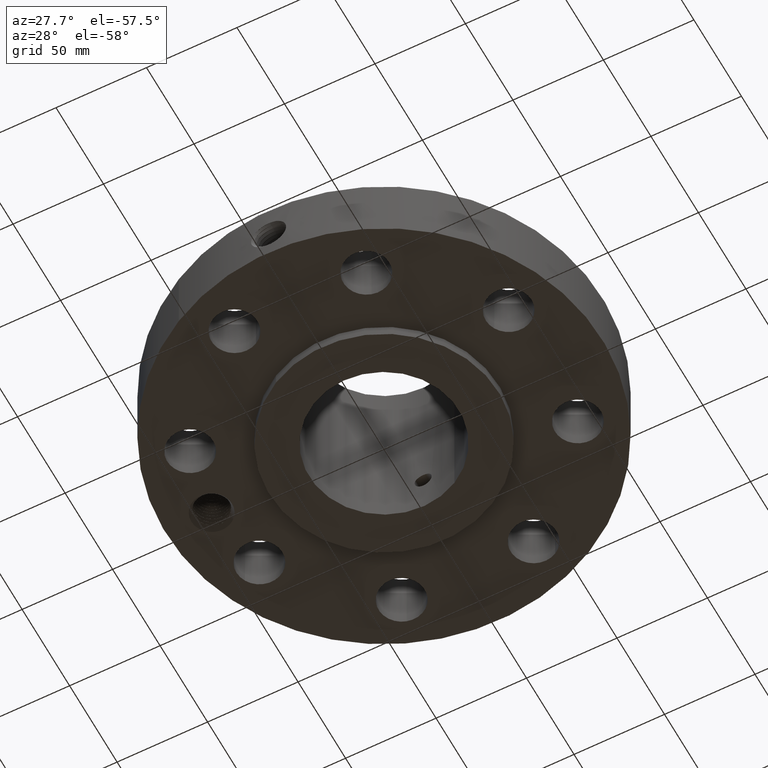
[diagram: clean part render]
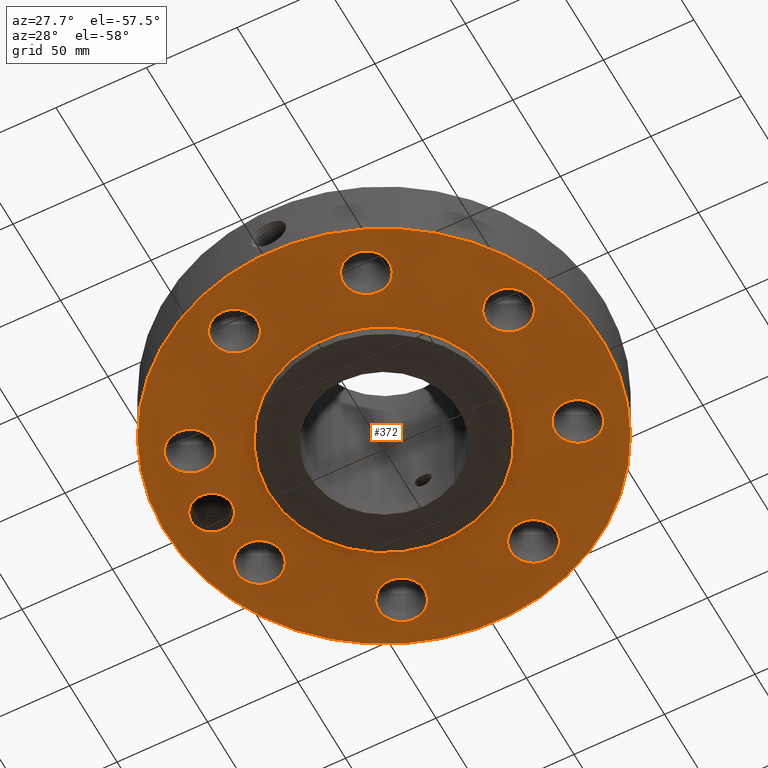
[diagram: same view with one face highlighted and labeled with its STEP entity id]
A machine part, auxiliary view. The second image highlights one B-rep face of the part: STEP entity #372.
In plain terms, the highlighted planar face has unit normal (0, 0, -1).
Its self-contained STEP definition (entity closure, byte-faithful):
#42=AXIS2_PLACEMENT_3D('Circle Axis2P3D',#40,#41,$) ;
#181=AXIS2_PLACEMENT_3D('Plane Axis2P3D',#178,#179,#180) ;
#185=AXIS2_PLACEMENT_3D('Circle Axis2P3D',#183,#184,$) ;
#194=AXIS2_PLACEMENT_3D('Circle Axis2P3D',#192,#193,$) ;
#203=AXIS2_PLACEMENT_3D('Circle Axis2P3D',#201,#202,$) ;
#212=AXIS2_PLACEMENT_3D('Circle Axis2P3D',#210,#211,$) ;
#221=AXIS2_PLACEMENT_3D('Circle Axis2P3D',#219,#220,$) ;
#230=AXIS2_PLACEMENT_3D('Circle Axis2P3D',#228,#229,$) ;
#239=AXIS2_PLACEMENT_3D('Circle Axis2P3D',#237,#238,$) ;
#248=AXIS2_PLACEMENT_3D('Circle Axis2P3D',#246,#247,$) ;
#257=AXIS2_PLACEMENT_3D('Circle Axis2P3D',#255,#256,$) ;
#266=AXIS2_PLACEMENT_3D('Circle Axis2P3D',#264,#265,$) ;
#275=AXIS2_PLACEMENT_3D('Circle Axis2P3D',#273,#274,$) ;
#284=AXIS2_PLACEMENT_3D('Circle Axis2P3D',#282,#283,$) ;
#293=AXIS2_PLACEMENT_3D('Circle Axis2P3D',#291,#292,$) ;
#302=AXIS2_PLACEMENT_3D('Circle Axis2P3D',#300,#301,$) ;
#311=AXIS2_PLACEMENT_3D('Circle Axis2P3D',#309,#310,$) ;
#320=AXIS2_PLACEMENT_3D('Circle Axis2P3D',#318,#319,$) ;
#329=AXIS2_PLACEMENT_3D('Circle Axis2P3D',#327,#328,$) ;
#338=AXIS2_PLACEMENT_3D('Circle Axis2P3D',#336,#337,$) ;
#347=AXIS2_PLACEMENT_3D('Circle Axis2P3D',#345,#346,$) ;
#356=AXIS2_PLACEMENT_3D('Circle Axis2P3D',#354,#355,$) ;
#365=AXIS2_PLACEMENT_3D('Circle Axis2P3D',#363,#364,$) ;
#40=CARTESIAN_POINT('Axis2P3D Location',(0.,0.,0.250000000001)) ;
#44=CARTESIAN_POINT('Vertex',(-2.27727130838,-4.168517169,0.250000000001)) ;
#46=CARTESIAN_POINT('Vertex',(2.27727130838,4.168517169,0.250000000001)) ;
#178=CARTESIAN_POINT('Axis2P3D Location',(0.,2.50000000001,0.250000000001)) ;
#183=CARTESIAN_POINT('Axis2P3D Location',(0.,0.,0.250000000001)) ;
#192=CARTESIAN_POINT('Axis2P3D Location',(-3.75000000001,8.39223703654E-016,0.250000000001)) ;
#196=CARTESIAN_POINT('Vertex',(-3.36140644161,-0.212289628495,0.250000000001)) ;
#198=CARTESIAN_POINT('Vertex',(-4.13859355842,0.212289628495,0.250000000001)) ;
#201=CARTESIAN_POINT('Axis2P3D Location',(-3.75000000001,8.39223703654E-016,0.250000000001)) ;
#210=CARTESIAN_POINT('Axis2P3D Location',(3.46454824693,-1.43506287137,0.250000000001)) ;
#214=CARTESIAN_POINT('Vertex',(3.90333952788,-1.67477564068,0.250000000001)) ;
#216=CARTESIAN_POINT('Vertex',(3.02575696598,-1.19535010207,0.250000000001)) ;
#219=CARTESIAN_POINT('Axis2P3D Location',(3.46454824693,-1.43506287137,0.250000000001)) ;
#228=CARTESIAN_POINT('Axis2P3D Location',(0.,0.,0.250000000001)) ;
#232=CARTESIAN_POINT('Vertex',(1.19856384652,2.19395640473,0.250000000001)) ;
#234=CARTESIAN_POINT('Vertex',(-1.19856384652,-2.19395640473,0.250000000001)) ;
#237=CARTESIAN_POINT('Axis2P3D Location',(0.,0.,0.250000000001)) ;
#246=CARTESIAN_POINT('Axis2P3D Location',(1.43506287137,-3.46454824693,0.250000000001)) ;
#250=CARTESIAN_POINT('Vertex',(1.2942931058,-2.98477343194,0.250000000001)) ;
#252=CARTESIAN_POINT('Vertex',(1.57583263695,-3.94432306193,0.250000000001)) ;
#255=CARTESIAN_POINT('Axis2P3D Location',(1.43506287137,-3.46454824693,0.250000000001)) ;
#264=CARTESIAN_POINT('Axis2P3D Location',(-1.43506287137,-3.46454824693,0.250000000001)) ;
#268=CARTESIAN_POINT('Vertex',(-1.19535010207,-3.02575696598,0.250000000001)) ;
#270=CARTESIAN_POINT('Vertex',(-1.67477564068,-3.90333952788,0.250000000001)) ;
#273=CARTESIAN_POINT('Axis2P3D Location',(-1.43506287137,-3.46454824693,0.250000000001)) ;
#282=CARTESIAN_POINT('Axis2P3D Location',(-3.46454824693,-1.43506287137,0.250000000001)) ;
#286=CARTESIAN_POINT('Vertex',(-2.98477343194,-1.2942931058,0.250000000001)) ;
#288=CARTESIAN_POINT('Vertex',(-3.94432306193,-1.57583263695,0.250000000001)) ;
#291=CARTESIAN_POINT('Axis2P3D Location',(-3.46454824693,-1.43506287137,0.250000000001)) ;
#300=CARTESIAN_POINT('Axis2P3D Location',(-3.46454824693,1.43506287137,0.250000000001)) ;
#304=CARTESIAN_POINT('Vertex',(-3.02575696598,1.19535010207,0.250000000001)) ;
#306=CARTESIAN_POINT('Vertex',(-3.90333952788,1.67477564068,0.250000000001)) ;
#309=CARTESIAN_POINT('Axis2P3D Location',(-3.46454824693,1.43506287137,0.250000000001)) ;
#318=CARTESIAN_POINT('Axis2P3D Location',(-1.43506287137,3.46454824693,0.250000000001)) ;
#322=CARTESIAN_POINT('Vertex',(-1.2942931058,2.98477343194,0.250000000001)) ;
#324=CARTESIAN_POINT('Vertex',(-1.57583263695,3.94432306193,0.250000000001)) ;
#327=CARTESIAN_POINT('Axis2P3D Location',(-1.43506287137,3.46454824693,0.250000000001)) ;
#336=CARTESIAN_POINT('Axis2P3D Location',(1.43506287137,3.46454824693,0.250000000001)) ;
#340=CARTESIAN_POINT('Vertex',(1.19535010207,3.02575696598,0.250000000001)) ;
#342=CARTESIAN_POINT('Vertex',(1.67477564068,3.90333952788,0.250000000001)) ;
#345=CARTESIAN_POINT('Axis2P3D Location',(1.43506287137,3.46454824693,0.250000000001)) ;
#354=CARTESIAN_POINT('Axis2P3D Location',(3.46454824693,1.43506287137,0.250000000001)) ;
#358=CARTESIAN_POINT('Vertex',(2.98477343194,1.2942931058,0.250000000001)) ;
#360=CARTESIAN_POINT('Vertex',(3.94432306193,1.57583263695,0.250000000001)) ;
#363=CARTESIAN_POINT('Axis2P3D Location',(3.46454824693,1.43506287137,0.250000000001)) ;
#41=DIRECTION('Axis2P3D Direction',(0.,0.,-0.0393700787402)) ;
#179=DIRECTION('Axis2P3D Direction',(0.,0.,-0.0393700787402)) ;
#180=DIRECTION('Axis2P3D XDirection',(0.0393700787402,0.,0.)) ;
#184=DIRECTION('Axis2P3D Direction',(0.,0.,-0.0393700787402)) ;
#193=DIRECTION('Axis2P3D Direction',(0.,0.,-0.0393700787402)) ;
#202=DIRECTION('Axis2P3D Direction',(0.,0.,-0.0393700787402)) ;
#211=DIRECTION('Axis2P3D Direction',(0.,0.,-0.0393700787402)) ;
#220=DIRECTION('Axis2P3D Direction',(0.,0.,-0.0393700787402)) ;
#229=DIRECTION('Axis2P3D Direction',(0.,0.,-0.0393700787402)) ;
#238=DIRECTION('Axis2P3D Direction',(0.,0.,-0.0393700787402)) ;
#247=DIRECTION('Axis2P3D Direction',(0.,0.,-0.0393700787402)) ;
#256=DIRECTION('Axis2P3D Direction',(0.,0.,-0.0393700787402)) ;
#265=DIRECTION('Axis2P3D Direction',(0.,0.,-0.0393700787402)) ;
#274=DIRECTION('Axis2P3D Direction',(0.,0.,-0.0393700787402)) ;
#283=DIRECTION('Axis2P3D Direction',(0.,0.,-0.0393700787402)) ;
#292=DIRECTION('Axis2P3D Direction',(0.,0.,-0.0393700787402)) ;
#301=DIRECTION('Axis2P3D Direction',(0.,0.,-0.0393700787402)) ;
#310=DIRECTION('Axis2P3D Direction',(0.,0.,-0.0393700787402)) ;
#319=DIRECTION('Axis2P3D Direction',(0.,0.,-0.0393700787402)) ;
#328=DIRECTION('Axis2P3D Direction',(0.,0.,-0.0393700787402)) ;
#337=DIRECTION('Axis2P3D Direction',(0.,0.,-0.0393700787402)) ;
#346=DIRECTION('Axis2P3D Direction',(0.,0.,-0.0393700787402)) ;
#355=DIRECTION('Axis2P3D Direction',(0.,0.,-0.0393700787402)) ;
#364=DIRECTION('Axis2P3D Direction',(0.,0.,-0.0393700787402)) ;
#189=ORIENTED_EDGE('',*,*,#48,.T.) ;
#190=ORIENTED_EDGE('',*,*,#187,.T.) ;
#207=ORIENTED_EDGE('',*,*,#200,.F.) ;
#208=ORIENTED_EDGE('',*,*,#205,.F.) ;
#225=ORIENTED_EDGE('',*,*,#218,.F.) ;
#226=ORIENTED_EDGE('',*,*,#223,.F.) ;
#243=ORIENTED_EDGE('',*,*,#236,.F.) ;
#244=ORIENTED_EDGE('',*,*,#241,.F.) ;
#261=ORIENTED_EDGE('',*,*,#254,.F.) ;
#262=ORIENTED_EDGE('',*,*,#259,.F.) ;
#279=ORIENTED_EDGE('',*,*,#272,.F.) ;
#280=ORIENTED_EDGE('',*,*,#277,.F.) ;
#297=ORIENTED_EDGE('',*,*,#290,.F.) ;
#298=ORIENTED_EDGE('',*,*,#295,.F.) ;
#315=ORIENTED_EDGE('',*,*,#308,.F.) ;
#316=ORIENTED_EDGE('',*,*,#313,.F.) ;
#333=ORIENTED_EDGE('',*,*,#326,.F.) ;
#334=ORIENTED_EDGE('',*,*,#331,.F.) ;
#351=ORIENTED_EDGE('',*,*,#344,.F.) ;
#352=ORIENTED_EDGE('',*,*,#349,.F.) ;
#369=ORIENTED_EDGE('',*,*,#362,.F.) ;
#370=ORIENTED_EDGE('',*,*,#367,.F.) ;
#209=FACE_BOUND('',#206,.T.) ;
#227=FACE_BOUND('',#224,.T.) ;
#245=FACE_BOUND('',#242,.T.) ;
#263=FACE_BOUND('',#260,.T.) ;
#281=FACE_BOUND('',#278,.T.) ;
#299=FACE_BOUND('',#296,.T.) ;
#317=FACE_BOUND('',#314,.T.) ;
#335=FACE_BOUND('',#332,.T.) ;
#353=FACE_BOUND('',#350,.T.) ;
#371=FACE_BOUND('',#368,.T.) ;
#372=ADVANCED_FACE('PartBody',(#191,#209,#227,#245,#263,#281,#299,#317,#335,#353,#371),#182,.T.) ;
#43=CIRCLE('generated circle',#42,4.75000000002) ;
#186=CIRCLE('generated circle',#185,4.75000000002) ;
#195=CIRCLE('generated circle',#194,0.442800000002) ;
#204=CIRCLE('generated circle',#203,0.442800000002) ;
#213=CIRCLE('generated circle',#212,0.500000000002) ;
#222=CIRCLE('generated circle',#221,0.500000000002) ;
#231=CIRCLE('generated circle',#230,2.50000000001) ;
#240=CIRCLE('generated circle',#239,2.50000000001) ;
#249=CIRCLE('generated circle',#248,0.500000000002) ;
#258=CIRCLE('generated circle',#257,0.500000000002) ;
#267=CIRCLE('generated circle',#266,0.500000000002) ;
#276=CIRCLE('generated circle',#275,0.500000000002) ;
#285=CIRCLE('generated circle',#284,0.500000000002) ;
#294=CIRCLE('generated circle',#293,0.500000000002) ;
#303=CIRCLE('generated circle',#302,0.500000000002) ;
#312=CIRCLE('generated circle',#311,0.500000000002) ;
#321=CIRCLE('generated circle',#320,0.500000000002) ;
#330=CIRCLE('generated circle',#329,0.500000000002) ;
#339=CIRCLE('generated circle',#338,0.500000000002) ;
#348=CIRCLE('generated circle',#347,0.500000000002) ;
#357=CIRCLE('generated circle',#356,0.500000000002) ;
#366=CIRCLE('generated circle',#365,0.500000000002) ;
#48=EDGE_CURVE('',#45,#47,#43,.T.) ;
#187=EDGE_CURVE('',#47,#45,#186,.T.) ;
#200=EDGE_CURVE('',#197,#199,#195,.T.) ;
#205=EDGE_CURVE('',#199,#197,#204,.T.) ;
#218=EDGE_CURVE('',#215,#217,#213,.T.) ;
#223=EDGE_CURVE('',#217,#215,#222,.T.) ;
#236=EDGE_CURVE('',#233,#235,#231,.T.) ;
#241=EDGE_CURVE('',#235,#233,#240,.T.) ;
#254=EDGE_CURVE('',#251,#253,#249,.T.) ;
#259=EDGE_CURVE('',#253,#251,#258,.T.) ;
#272=EDGE_CURVE('',#269,#271,#267,.T.) ;
#277=EDGE_CURVE('',#271,#269,#276,.T.) ;
#290=EDGE_CURVE('',#287,#289,#285,.T.) ;
#295=EDGE_CURVE('',#289,#287,#294,.T.) ;
#308=EDGE_CURVE('',#305,#307,#303,.T.) ;
#313=EDGE_CURVE('',#307,#305,#312,.T.) ;
#326=EDGE_CURVE('',#323,#325,#321,.T.) ;
#331=EDGE_CURVE('',#325,#323,#330,.T.) ;
#344=EDGE_CURVE('',#341,#343,#339,.T.) ;
#349=EDGE_CURVE('',#343,#341,#348,.T.) ;
#362=EDGE_CURVE('',#359,#361,#357,.T.) ;
#367=EDGE_CURVE('',#361,#359,#366,.T.) ;
#188=EDGE_LOOP('',(#189,#190)) ;
#206=EDGE_LOOP('',(#207,#208)) ;
#224=EDGE_LOOP('',(#225,#226)) ;
#242=EDGE_LOOP('',(#243,#244)) ;
#260=EDGE_LOOP('',(#261,#262)) ;
#278=EDGE_LOOP('',(#279,#280)) ;
#296=EDGE_LOOP('',(#297,#298)) ;
#314=EDGE_LOOP('',(#315,#316)) ;
#332=EDGE_LOOP('',(#333,#334)) ;
#350=EDGE_LOOP('',(#351,#352)) ;
#368=EDGE_LOOP('',(#369,#370)) ;
#191=FACE_OUTER_BOUND('',#188,.T.) ;
#182=PLANE('',#181) ;
#45=VERTEX_POINT('',#44) ;
#47=VERTEX_POINT('',#46) ;
#197=VERTEX_POINT('',#196) ;
#199=VERTEX_POINT('',#198) ;
#215=VERTEX_POINT('',#214) ;
#217=VERTEX_POINT('',#216) ;
#233=VERTEX_POINT('',#232) ;
#235=VERTEX_POINT('',#234) ;
#251=VERTEX_POINT('',#250) ;
#253=VERTEX_POINT('',#252) ;
#269=VERTEX_POINT('',#268) ;
#271=VERTEX_POINT('',#270) ;
#287=VERTEX_POINT('',#286) ;
#289=VERTEX_POINT('',#288) ;
#305=VERTEX_POINT('',#304) ;
#307=VERTEX_POINT('',#306) ;
#323=VERTEX_POINT('',#322) ;
#325=VERTEX_POINT('',#324) ;
#341=VERTEX_POINT('',#340) ;
#343=VERTEX_POINT('',#342) ;
#359=VERTEX_POINT('',#358) ;
#361=VERTEX_POINT('',#360) ;